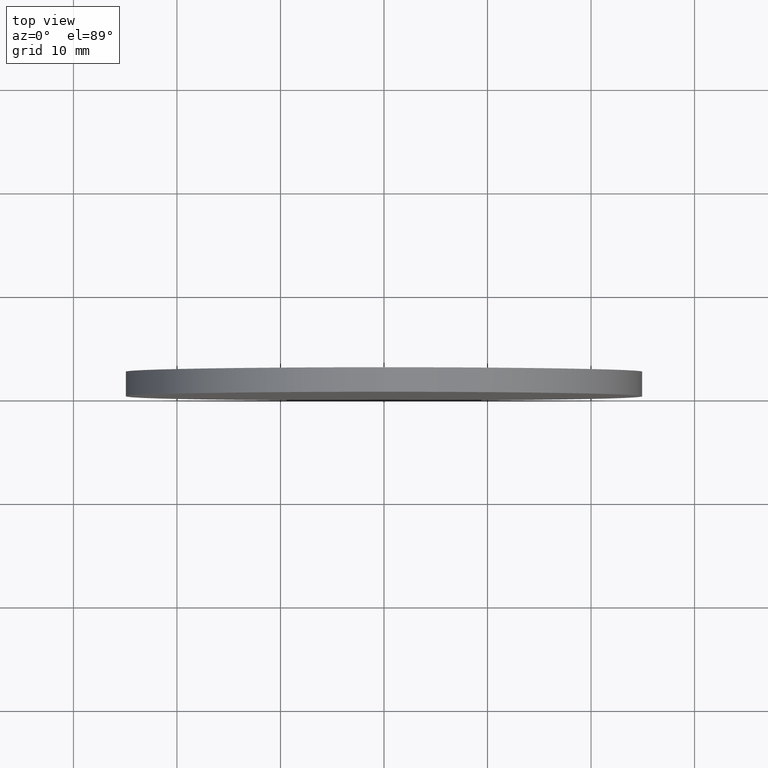
[diagram: clean part render]
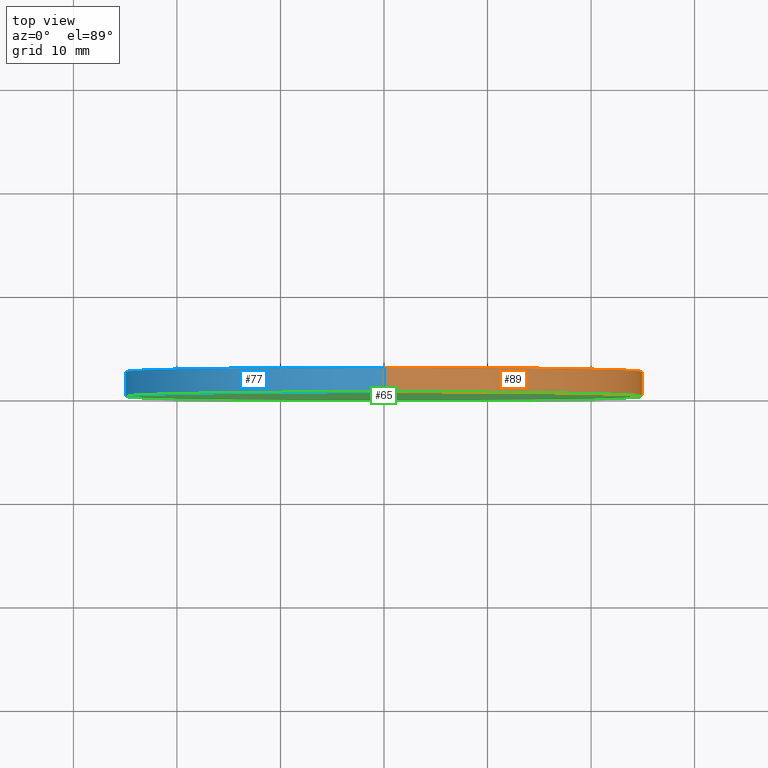
[diagram: same view with three faces highlighted in distinct colors, each labeled with its STEP entity id]
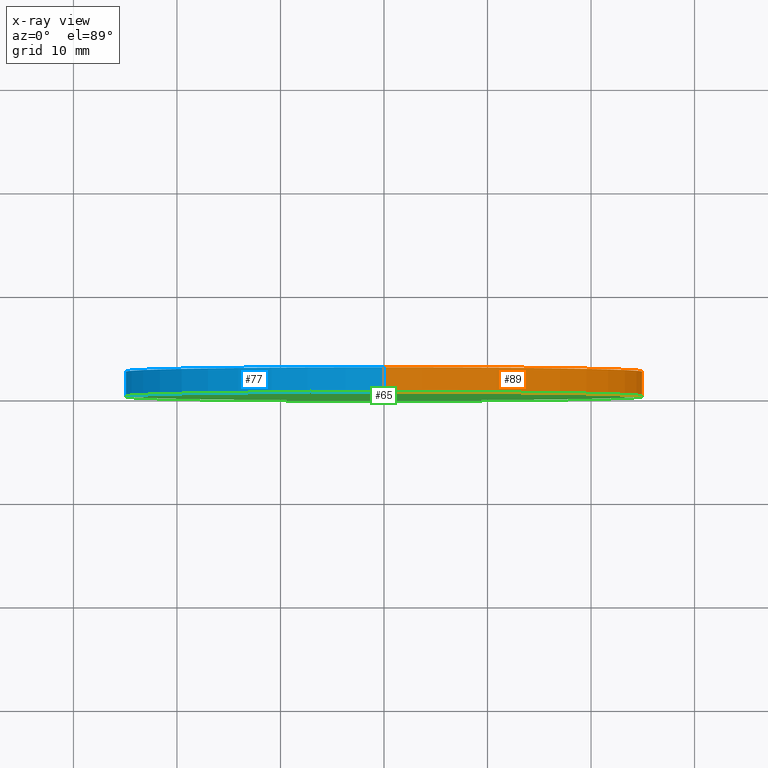
[diagram: x-ray of the same camera — body ghosted, the three highlighted faces saturated]
A machine part, top view with three faces highlighted in distinct colors.
The next image is the same camera in x-ray (body ghosted, the three faces saturated) — at least one of them is partly hidden behind the body in this view.
Their STEP definitions:

[orange] entity #89 — the highlighted cylindrical surface (partial cylindrical patch) has radius 25 mm, axis along (-0, -1, -0).
#11 = EDGE_LOOP ( 'NONE', ( #88, #82, #51, #55 ) ) ;
#34 = AXIS2_PLACEMENT_3D ( 'NONE', #139, #133, #137 ) ;
#35 = CYLINDRICAL_SURFACE ( 'NONE', #34, 25.00000000000000000 ) ;
#41 = VECTOR ( 'NONE', #53, 1000.000000000000000 ) ;
#45 = VERTEX_POINT ( 'NONE', #71 ) ;
#49 = VERTEX_POINT ( 'NONE', #91 ) ;
#51 = ORIENTED_EDGE ( 'NONE', *, *, #114, .T. ) ;
#53 = DIRECTION ( 'NONE',  ( -0.0000000000000000000, -1.000000000000000000, -0.0000000000000000000 ) ) ;
#54 = CARTESIAN_POINT ( 'NONE',  ( 3.061616997868383000E-015, 2.370000000000000100, 25.00000000000000000 ) ) ;
#55 = ORIENTED_EDGE ( 'NONE', *, *, #86, .F. ) ;
#56 = DIRECTION ( 'NONE',  ( 0.0000000000000000000, 0.0000000000000000000, 1.000000000000000000 ) ) ;
#58 = DIRECTION ( 'NONE',  ( 0.0000000000000000000, 1.000000000000000000, 0.0000000000000000000 ) ) ;
#59 = CARTESIAN_POINT ( 'NONE',  ( 0.0000000000000000000, 0.0000000000000000000, 0.0000000000000000000 ) ) ;
#68 = CARTESIAN_POINT ( 'NONE',  ( 0.0000000000000000000, 2.370000000000000100, -25.00000000000000000 ) ) ;
#69 = CARTESIAN_POINT ( 'NONE',  ( 3.061616997868383000E-015, 0.0000000000000000000, 25.00000000000000000 ) ) ;
#71 = CARTESIAN_POINT ( 'NONE',  ( 0.0000000000000000000, 0.0000000000000000000, -25.00000000000000000 ) ) ;
#79 = CARTESIAN_POINT ( 'NONE',  ( 3.061616997868383000E-015, 2.370000000000000100, 25.00000000000000000 ) ) ;
#82 = ORIENTED_EDGE ( 'NONE', *, *, #140, .T. ) ;
#83 = VERTEX_POINT ( 'NONE', #54 ) ;
#85 = LINE ( 'NONE', #79, #41 ) ;
#86 = EDGE_CURVE ( 'NONE', #49, #45, #87, .T. ) ;
#87 = LINE ( 'NONE', #68, #102 ) ;
#88 = ORIENTED_EDGE ( 'NONE', *, *, #98, .F. ) ;
#89 = ADVANCED_FACE ( 'NONE', ( #112 ), #35, .T. ) ;
#91 = CARTESIAN_POINT ( 'NONE',  ( 0.0000000000000000000, 2.370000000000000100, -25.00000000000000000 ) ) ;
#93 = CIRCLE ( 'NONE', #136, 25.00000000000000000 ) ;
#98 = EDGE_CURVE ( 'NONE', #83, #49, #93, .T. ) ;
#102 = VECTOR ( 'NONE', #120, 1000.000000000000000 ) ;
#103 = DIRECTION ( 'NONE',  ( 0.0000000000000000000, 0.0000000000000000000, 1.000000000000000000 ) ) ;
#104 = DIRECTION ( 'NONE',  ( 0.0000000000000000000, 1.000000000000000000, 0.0000000000000000000 ) ) ;
#105 = CARTESIAN_POINT ( 'NONE',  ( 0.0000000000000000000, 2.370000000000000100, 0.0000000000000000000 ) ) ;
#112 = FACE_OUTER_BOUND ( 'NONE', #11, .T. ) ;
#113 = CIRCLE ( 'NONE', #123, 25.00000000000000000 ) ;
#114 = EDGE_CURVE ( 'NONE', #128, #45, #113, .T. ) ;
#120 = DIRECTION ( 'NONE',  ( -0.0000000000000000000, -1.000000000000000000, -0.0000000000000000000 ) ) ;
#123 = AXIS2_PLACEMENT_3D ( 'NONE', #59, #58, #56 ) ;
#128 = VERTEX_POINT ( 'NONE', #69 ) ;
#133 = DIRECTION ( 'NONE',  ( -0.0000000000000000000, -1.000000000000000000, -0.0000000000000000000 ) ) ;
#136 = AXIS2_PLACEMENT_3D ( 'NONE', #105, #104, #103 ) ;
#137 = DIRECTION ( 'NONE',  ( 0.0000000000000000000, 0.0000000000000000000, -1.000000000000000000 ) ) ;
#139 = CARTESIAN_POINT ( 'NONE',  ( 0.0000000000000000000, 2.370000000000000100, 0.0000000000000000000 ) ) ;
#140 = EDGE_CURVE ( 'NONE', #83, #128, #85, .T. ) ;

[blue] entity #77 — the highlighted cylindrical surface (partial cylindrical patch) has radius 25 mm, axis along (-0, -1, -0).
#4 = CIRCLE ( 'NONE', #9, 25.00000000000000000 ) ;
#6 = EDGE_CURVE ( 'NONE', #49, #83, #42, .T. ) ;
#9 = AXIS2_PLACEMENT_3D ( 'NONE', #19, #20, #25 ) ;
#17 = DIRECTION ( 'NONE',  ( 0.0000000000000000000, 0.0000000000000000000, -1.000000000000000000 ) ) ;
#18 = DIRECTION ( 'NONE',  ( 0.0000000000000000000, 0.0000000000000000000, 1.000000000000000000 ) ) ;
#19 = CARTESIAN_POINT ( 'NONE',  ( 0.0000000000000000000, 0.0000000000000000000, 0.0000000000000000000 ) ) ;
#20 = DIRECTION ( 'NONE',  ( 0.0000000000000000000, 1.000000000000000000, 0.0000000000000000000 ) ) ;
#23 = ORIENTED_EDGE ( 'NONE', *, *, #6, .F. ) ;
#25 = DIRECTION ( 'NONE',  ( 0.0000000000000000000, 0.0000000000000000000, 1.000000000000000000 ) ) ;
#32 = FACE_OUTER_BOUND ( 'NONE', #80, .T. ) ;
#40 = AXIS2_PLACEMENT_3D ( 'NONE', #110, #130, #17 ) ;
#41 = VECTOR ( 'NONE', #53, 1000.000000000000000 ) ;
#42 = CIRCLE ( 'NONE', #48, 25.00000000000000000 ) ;
#45 = VERTEX_POINT ( 'NONE', #71 ) ;
#47 = DIRECTION ( 'NONE',  ( 0.0000000000000000000, 1.000000000000000000, 0.0000000000000000000 ) ) ;
#48 = AXIS2_PLACEMENT_3D ( 'NONE', #111, #47, #18 ) ;
#49 = VERTEX_POINT ( 'NONE', #91 ) ;
#53 = DIRECTION ( 'NONE',  ( -0.0000000000000000000, -1.000000000000000000, -0.0000000000000000000 ) ) ;
#54 = CARTESIAN_POINT ( 'NONE',  ( 3.061616997868383000E-015, 2.370000000000000100, 25.00000000000000000 ) ) ;
#68 = CARTESIAN_POINT ( 'NONE',  ( 0.0000000000000000000, 2.370000000000000100, -25.00000000000000000 ) ) ;
#69 = CARTESIAN_POINT ( 'NONE',  ( 3.061616997868383000E-015, 0.0000000000000000000, 25.00000000000000000 ) ) ;
#70 = EDGE_CURVE ( 'NONE', #45, #128, #4, .T. ) ;
#71 = CARTESIAN_POINT ( 'NONE',  ( 0.0000000000000000000, 0.0000000000000000000, -25.00000000000000000 ) ) ;
#77 = ADVANCED_FACE ( 'NONE', ( #32 ), #138, .T. ) ;
#79 = CARTESIAN_POINT ( 'NONE',  ( 3.061616997868383000E-015, 2.370000000000000100, 25.00000000000000000 ) ) ;
#80 = EDGE_LOOP ( 'NONE', ( #94, #23, #118, #100 ) ) ;
#83 = VERTEX_POINT ( 'NONE', #54 ) ;
#85 = LINE ( 'NONE', #79, #41 ) ;
#86 = EDGE_CURVE ( 'NONE', #49, #45, #87, .T. ) ;
#87 = LINE ( 'NONE', #68, #102 ) ;
#91 = CARTESIAN_POINT ( 'NONE',  ( 0.0000000000000000000, 2.370000000000000100, -25.00000000000000000 ) ) ;
#94 = ORIENTED_EDGE ( 'NONE', *, *, #140, .F. ) ;
#100 = ORIENTED_EDGE ( 'NONE', *, *, #70, .T. ) ;
#102 = VECTOR ( 'NONE', #120, 1000.000000000000000 ) ;
#110 = CARTESIAN_POINT ( 'NONE',  ( 0.0000000000000000000, 2.370000000000000100, 0.0000000000000000000 ) ) ;
#111 = CARTESIAN_POINT ( 'NONE',  ( 0.0000000000000000000, 2.370000000000000100, 0.0000000000000000000 ) ) ;
#118 = ORIENTED_EDGE ( 'NONE', *, *, #86, .T. ) ;
#120 = DIRECTION ( 'NONE',  ( -0.0000000000000000000, -1.000000000000000000, -0.0000000000000000000 ) ) ;
#128 = VERTEX_POINT ( 'NONE', #69 ) ;
#130 = DIRECTION ( 'NONE',  ( -0.0000000000000000000, -1.000000000000000000, -0.0000000000000000000 ) ) ;
#138 = CYLINDRICAL_SURFACE ( 'NONE', #40, 25.00000000000000000 ) ;
#140 = EDGE_CURVE ( 'NONE', #83, #128, #85, .T. ) ;

[green] entity #65 — the highlighted planar face has unit normal (0, 1, 0).
#4 = CIRCLE ( 'NONE', #9, 25.00000000000000000 ) ;
#9 = AXIS2_PLACEMENT_3D ( 'NONE', #19, #20, #25 ) ;
#19 = CARTESIAN_POINT ( 'NONE',  ( 0.0000000000000000000, 0.0000000000000000000, 0.0000000000000000000 ) ) ;
#20 = DIRECTION ( 'NONE',  ( 0.0000000000000000000, 1.000000000000000000, 0.0000000000000000000 ) ) ;
#25 = DIRECTION ( 'NONE',  ( 0.0000000000000000000, 0.0000000000000000000, 1.000000000000000000 ) ) ;
#28 = AXIS2_PLACEMENT_3D ( 'NONE', #97, #134, #132 ) ;
#45 = VERTEX_POINT ( 'NONE', #71 ) ;
#56 = DIRECTION ( 'NONE',  ( 0.0000000000000000000, 0.0000000000000000000, 1.000000000000000000 ) ) ;
#58 = DIRECTION ( 'NONE',  ( 0.0000000000000000000, 1.000000000000000000, 0.0000000000000000000 ) ) ;
#59 = CARTESIAN_POINT ( 'NONE',  ( 0.0000000000000000000, 0.0000000000000000000, 0.0000000000000000000 ) ) ;
#61 = ORIENTED_EDGE ( 'NONE', *, *, #70, .F. ) ;
#63 = ORIENTED_EDGE ( 'NONE', *, *, #114, .F. ) ;
#65 = ADVANCED_FACE ( 'NONE', ( #109 ), #107, .F. ) ;
#69 = CARTESIAN_POINT ( 'NONE',  ( 3.061616997868383000E-015, 0.0000000000000000000, 25.00000000000000000 ) ) ;
#70 = EDGE_CURVE ( 'NONE', #45, #128, #4, .T. ) ;
#71 = CARTESIAN_POINT ( 'NONE',  ( 0.0000000000000000000, 0.0000000000000000000, -25.00000000000000000 ) ) ;
#97 = CARTESIAN_POINT ( 'NONE',  ( 0.0000000000000000000, 0.0000000000000000000, 0.0000000000000000000 ) ) ;
#107 = PLANE ( 'NONE',  #28 ) ;
#109 = FACE_OUTER_BOUND ( 'NONE', #122, .T. ) ;
#113 = CIRCLE ( 'NONE', #123, 25.00000000000000000 ) ;
#114 = EDGE_CURVE ( 'NONE', #128, #45, #113, .T. ) ;
#122 = EDGE_LOOP ( 'NONE', ( #61, #63 ) ) ;
#123 = AXIS2_PLACEMENT_3D ( 'NONE', #59, #58, #56 ) ;
#128 = VERTEX_POINT ( 'NONE', #69 ) ;
#132 = DIRECTION ( 'NONE',  ( 0.0000000000000000000, -0.0000000000000000000, 1.000000000000000000 ) ) ;
#134 = DIRECTION ( 'NONE',  ( 0.0000000000000000000, 1.000000000000000000, 0.0000000000000000000 ) ) ;